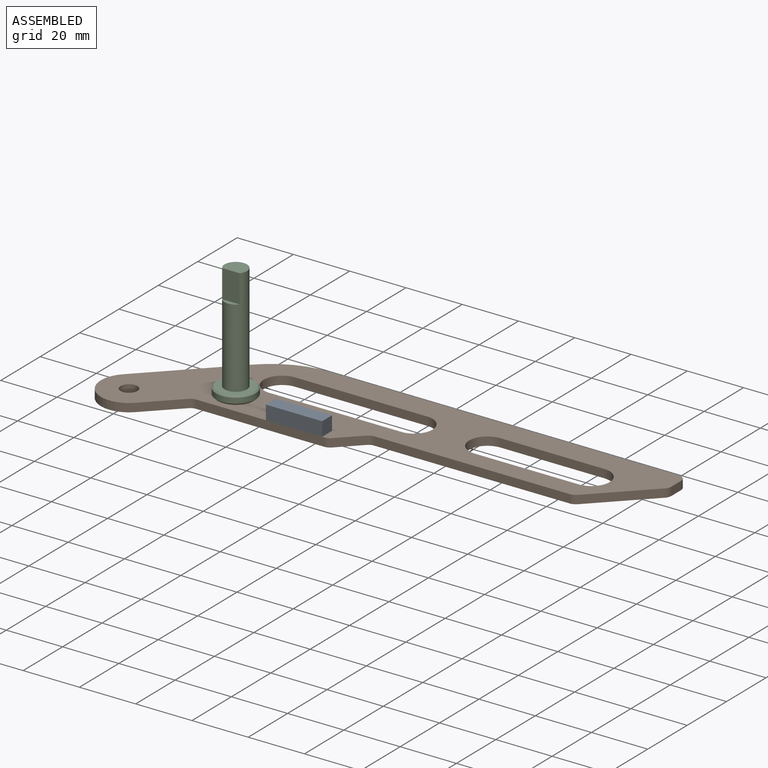
[diagram: assembled view]
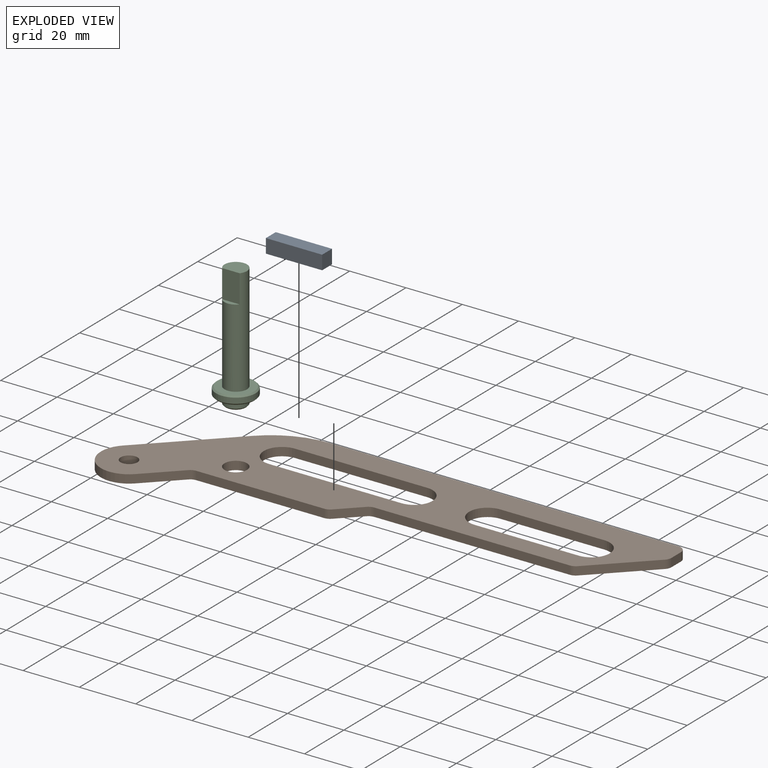
[diagram: exploded view]
GUIDED TOUR — MATED ASSEMBLY (Onshape document 8dc88a32c222754350731d31, AutoMate assembly 8dc88a32c222754350731d31_5c7265ce2e5a198c69324356_d00012385e705c01880abd5c_default)

This assembly has 3 components, labeled P0..P2 below (a component is one placed occurrence of a part; the same part can appear more than once), held together by 2 mates. A mate is a constraint between two components; its type names the relative motion it leaves free:
  FASTENED — locks the two components together rigidly (no relative motion),
  PARALLEL — keeps the two listed directions parallel.
Axis/direction vectors are unit vectors and 'through' points are millimeter coordinates, both in the assembly's world frame.

MATES
  1. FASTENED "Fastened 1": P0 <-> P1, direction (0.000, 0.000, 1.000) through (-65.67, 31.32, 6.66) mm
  2. PARALLEL "Parallel 1": P2 <-> P1, direction (0.000, 0.000, -1.000) through (-102.67, 40.32, -1.34) mm

ASSEMBLY ORDER
  1. P2 — the base component [order verified]
  2. P1 [order verified]
  3. P0 [order verified]
(P1 verified with a relaxed clearance tolerance: the source model stores slight part interference there.)
Order-tag legend:
  [order verified] — this step's position reverses a verified removal order: the component was checked to insert without passing through the ones already placed.

Of the 3 components, 3 carry the full construction recipe — the FeatureScript program that regenerates the part's solid from scratch; the rest are supplied as boundary geometry only.
Each toured component is shown spotlighted twice — in the assembled view, then in the exploded view, where a leader line traces a displaced component back to its assembled socket (saturated green if recipe-attached, orange if geometry-only; every other component desaturated gray) — followed by its recipe or geometry summary and the mates that hold it.
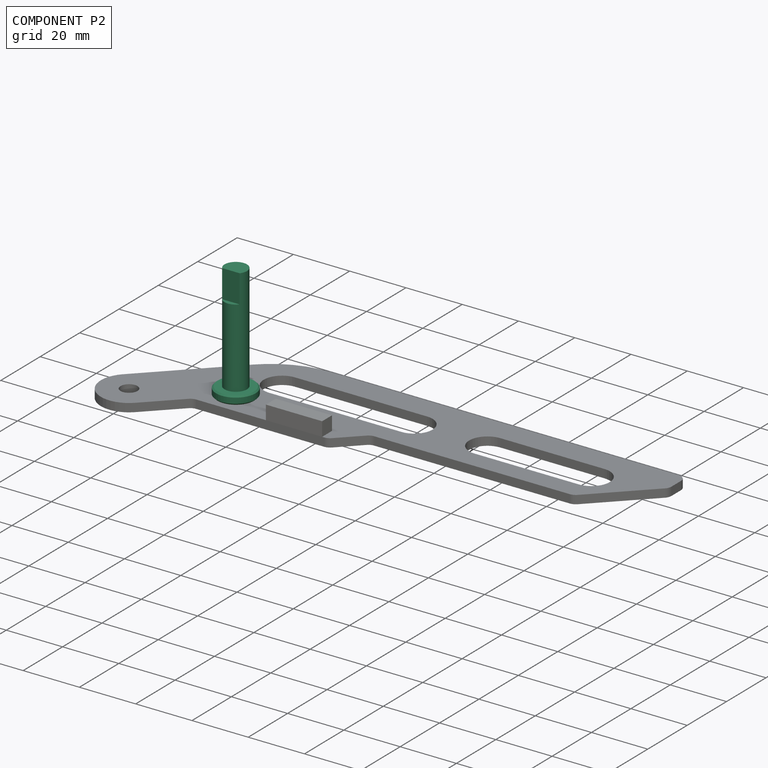
[diagram: component P2 — assembled]
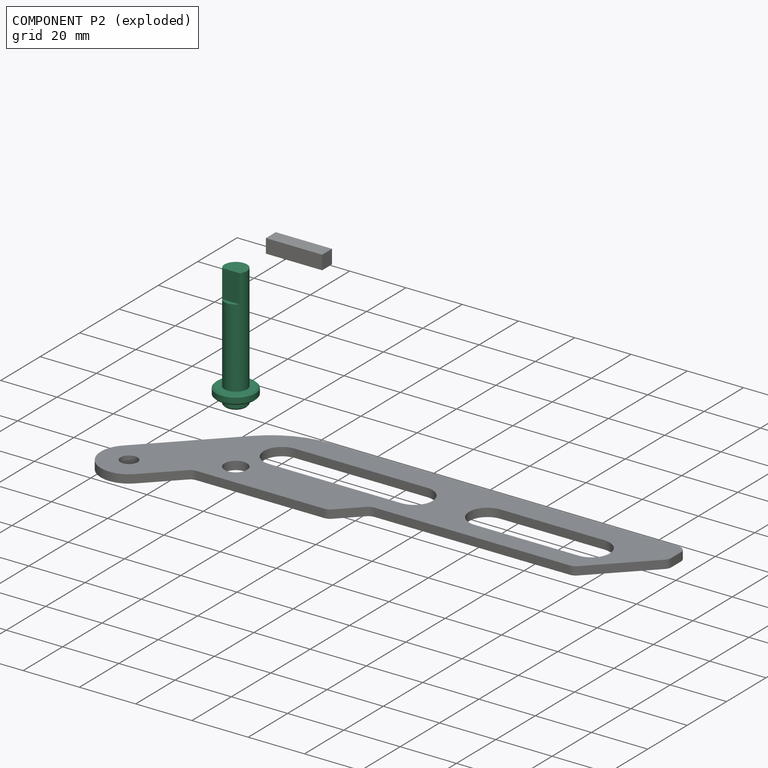
[diagram: component P2 — exploded]
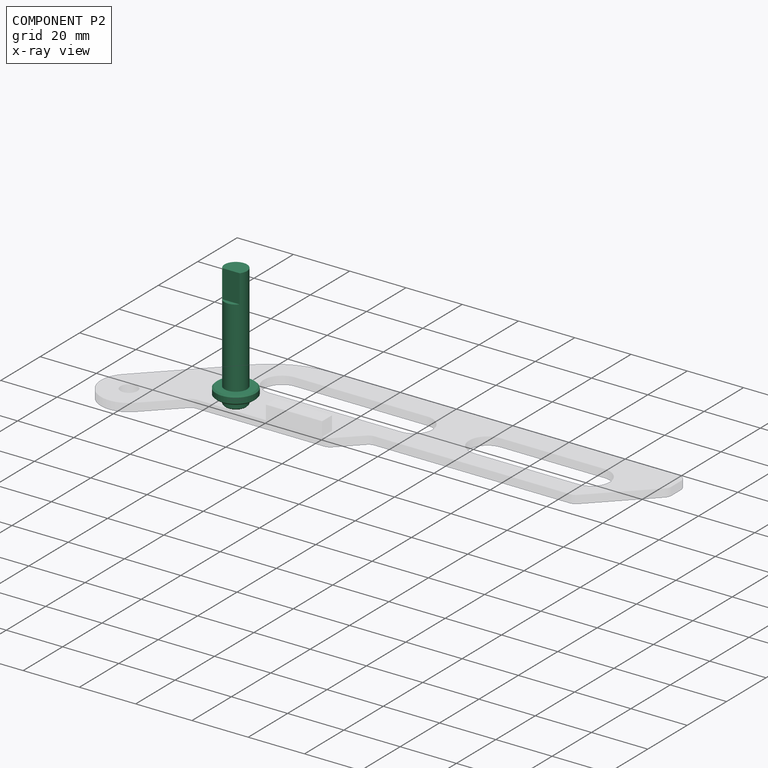
[diagram: component P2 — x-ray view]
COMPONENT P2 — recipe-attached (CADFS 00244749, mesh-verified: the recipe's output STEP matches this component's geometry to below the mesh-comparison resolution (tessellation chordal tolerance ~0.0724 mm)).
Held by: PARALLEL mate "Parallel 1" to P1.
Construction recipe (FeatureScript — the CAD program that rebuilds this solid; sketch coordinates are in the units given by the * unit suffixes, e.g. mm):

FeatureScript 1511;
import(path : "onshape/std/geometry.fs", version : "1511.0");
import(path : "onshape/std/common.fs", version : "1511.0");
const mm = millimeter;
const VERTEX = EntityType.VERTEX;
const EDGE = EntityType.EDGE;
const FACE = EntityType.FACE;
const BODY = EntityType.BODY;
function v(x, y){return vector(x, y);}
function OD(order){return orderDisambiguation(order);}
function OSD(set){return originalSetDisambiguation(set);}
function TD(topology){return topologyDisambiguation(topology);}
function TDD(query){return trueDependencyDisambiguation(query);}
function sQuery(a, b, c) {return sketchEntityQuery(a, b, c);}

annotation { "Feature Type Name" : "Feature", "Feature Type Description" : "" }
export const myFeature = defineFeature(function(context is Context, id is Id, definition is map)
    precondition{}
    {
        {
            var Q0;
            Q0=qCreatedBy(makeId("Top.planeOp"),FACE);
            var sketch = newSketch(context, id + "F0", { "sketchPlane" : qUnion([Q0])});
            skCircle(sketch, "E0", {"center": v(0, 0) * mm, "radius": 4 * mm});
            skCircle(sketch, "E1", {"center": v(0, 0) * mm, "radius": 7 * mm});
            skSolve(sketch);
        }
        {
            var Q0;
            Q0=makeQuery(id+"F0.imprint","IMPRINT",FACE,{"disambiguationData":[TD([[makeQuery(id+"F0.imprint","IMPRINT",EDGE,{"derivedFrom":sQuery(id+"F0.wireOp",EDGE,"E0")}),1.0]])]});
            extrude(context, id + "F1", {"entities" : qUnion([Q0]), "depth" : 41 * mm});
        }
        {
            var Q0;
            Q0=makeQuery(id+"F0.imprint","IMPRINT",FACE,{"disambiguationData":[TD([[makeQuery(id+"F0.imprint","IMPRINT",EDGE,{"derivedFrom":sQuery(id+"F0.wireOp",EDGE,"E0")}),1.0]])]});
            var Q1;
            Q1=sQuery(id+"F0.wireOp",EDGE,"E0");
            extrude(context, id + "F2", {"entities" : qUnion([Q0]), "operationType" : NewBodyOperationType.ADD, "surfaceEntities" : qUnion([Q1]), "oppositeDirection" : true, "depth" : 3 * mm});
        }
        {
            var Q0;
            Q0=makeQuery(id+"F0.imprint","IMPRINT",FACE,{"disambiguationData":[TD([[makeQuery(id+"F0.imprint","IMPRINT",EDGE,{"derivedFrom":sQuery(id+"F0.wireOp",EDGE,"E0")}),-1.0]])]});
            extrude(context, id + "F3", {"entities" : qUnion([Q0]), "operationType" : NewBodyOperationType.ADD, "depth" : 3 * mm});
        }
        {
            var Q0;
            Q0=makeQuery(id+"F1.opExtrude","CAP_FACE",FACE,{"disambiguationData":[OSD([sQuery(id+"F0.wireOp",EDGE,"E0")])],"isStart":false});
            var sketch = newSketch(context, id + "F4", { "sketchPlane" : qUnion([Q0])});
            skLineSegment(sketch, "E2", {"start": v(0, 0) * mm, "end": v(0, -2.5) * mm});
            skLineSegment(sketch, "E3.bottom", {"start": v(4.57, -2.5) * mm, "end": v(-4.51, -2.5) * mm});
            skLineSegment(sketch, "E3.top", {"start": v(4.57, -5.26) * mm, "end": v(-4.51, -5.26) * mm});
            skLineSegment(sketch, "E3.left", {"start": v(4.57, -2.5) * mm, "end": v(4.57, -5.26) * mm});
            skLineSegment(sketch, "E3.right", {"start": v(-4.51, -2.5) * mm, "end": v(-4.51, -5.26) * mm});
            skSolve(sketch);
        }
        {
            var Q0;
            Q0 = qSketchRegion(id + "F4", true);
            extrude(context, id + "F5", {"entities" : qUnion([Q0]), "operationType" : NewBodyOperationType.REMOVE, "oppositeDirection" : true, "depth" : 10 * mm});
        }
        {
            var Q0;
            Q0=makeQuery(id+"F3.opExtrude","CAP_EDGE",EDGE,{"disambiguationData":[OSD([sQuery(id+"F0.wireOp",EDGE,"E1")])],"isStart":false});
            chamfer(context, id + "F6", {"entities" : qUnion([Q0]), "chamferType" : ChamferType.OFFSET_ANGLE, "width" : .5 * mm, "oppositeDirection" : false, "angle" : 45 * degree, "tangentPropagation" : true});
        }
        {
            var Q0;
            Q0=makeQuery(id+"F3.opExtrude","CAP_EDGE",EDGE,{"disambiguationData":[OSD([sQuery(id+"F0.wireOp",EDGE,"E1")])],"isStart":true});
            chamfer(context, id + "F7", {"entities" : qUnion([Q0]), "chamferType" : ChamferType.OFFSET_ANGLE, "width" : .5 * mm, "oppositeDirection" : false, "angle" : 45 * degree, "tangentPropagation" : true});
        }
        {
            var Q0;
            Q0=makeQuery(id+"F2.opExtrude","CAP_EDGE",EDGE,{"disambiguationData":[OSD([sQuery(id+"F0.wireOp",EDGE,"E0")])],"isStart":false});
            chamfer(context, id + "F8", {"entities" : qUnion([Q0]), "chamferType" : ChamferType.OFFSET_ANGLE, "width" : .5 * mm, "oppositeDirection" : false, "angle" : 45 * degree, "tangentPropagation" : true});
        }
    });
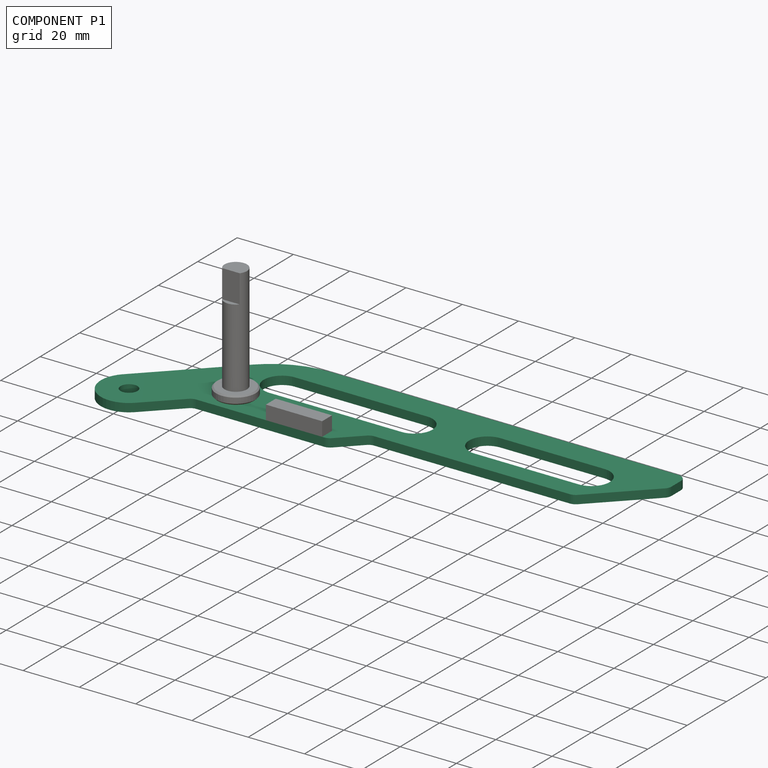
[diagram: component P1 — assembled]
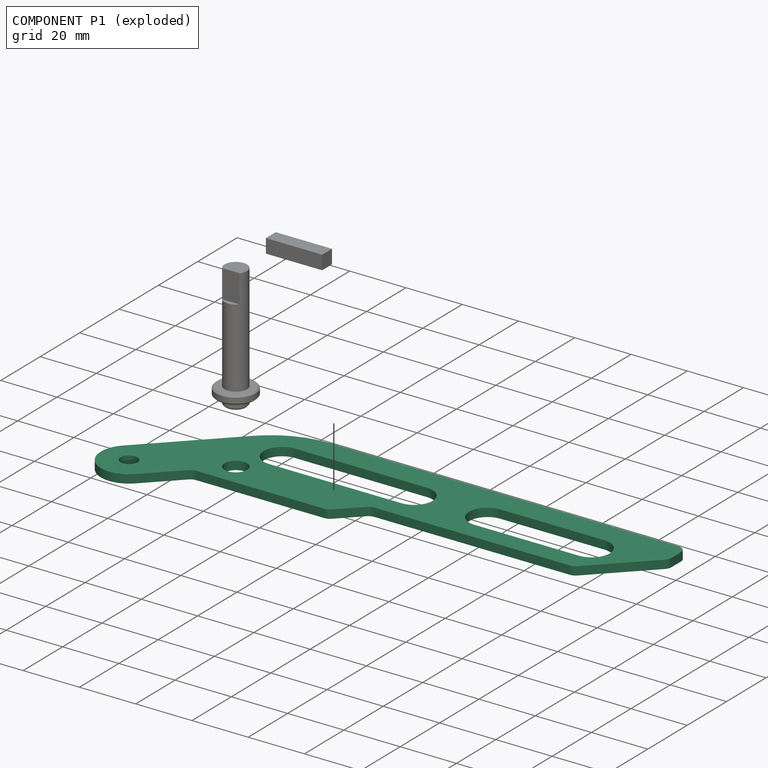
[diagram: component P1 — exploded]
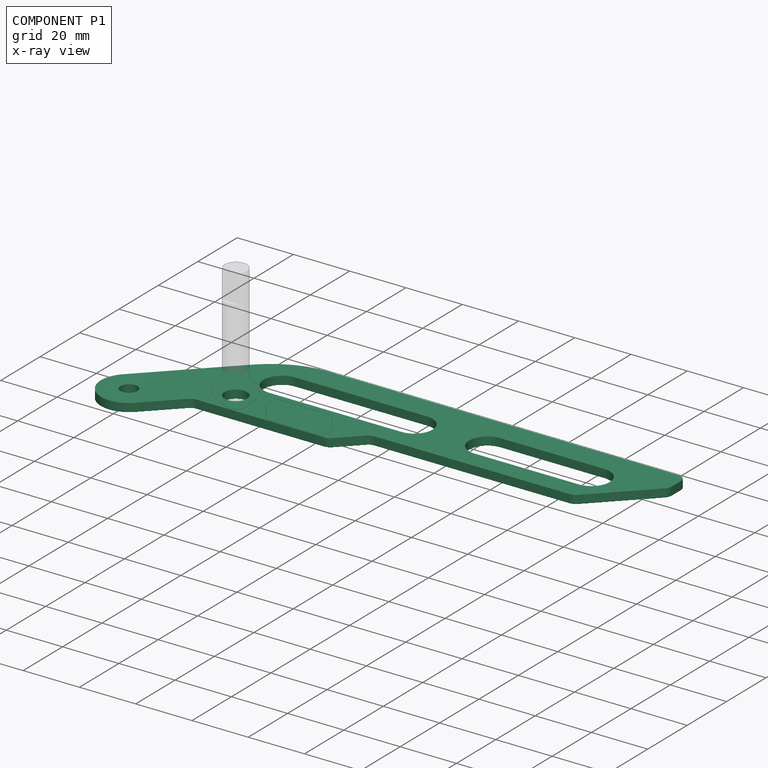
[diagram: component P1 — x-ray view]
COMPONENT P1 — recipe-attached (CADFS 00244751, mesh-verified: the recipe's output STEP matches this component's geometry to below the mesh-comparison resolution (tessellation chordal tolerance ~0.279 mm)).
Held by: FASTENED mate "Fastened 1" to P0; PARALLEL mate "Parallel 1" to P2.
Construction recipe (FeatureScript — the CAD program that rebuilds this solid; sketch coordinates are in the units given by the * unit suffixes, e.g. mm):

FeatureScript 1511;
import(path : "onshape/std/geometry.fs", version : "1511.0");
import(path : "onshape/std/common.fs", version : "1511.0");
const mm = millimeter;
const VERTEX = EntityType.VERTEX;
const EDGE = EntityType.EDGE;
const FACE = EntityType.FACE;
const BODY = EntityType.BODY;
function v(x, y){return vector(x, y);}
function OD(order){return orderDisambiguation(order);}
function OSD(set){return originalSetDisambiguation(set);}
function TD(topology){return topologyDisambiguation(topology);}
function TDD(query){return trueDependencyDisambiguation(query);}
function sQuery(a, b, c) {return sketchEntityQuery(a, b, c);}

annotation { "Feature Type Name" : "Feature", "Feature Type Description" : "" }
export const myFeature = defineFeature(function(context is Context, id is Id, definition is map)
    precondition{}
    {
        {
            var Q0;
            Q0=qCreatedBy(makeId("Top.planeOp"),FACE);
            var sketch = newSketch(context, id + "F0", { "sketchPlane" : qUnion([Q0])});
            skLineSegment(sketch, "E0", {"start": v(-352.57, 8.85) * mm, "end": v(-325.42, 35.99) * mm});
            skLineSegment(sketch, "E1", {"start": v(-304.21, 44.78) * mm, "end": v(-180.35, 44.78) * mm});
            skLineSegment(sketch, "E2", {"start": v(-177.35, 41.78) * mm, "end": v(-177.35, 37.02) * mm});
            skLineSegment(sketch, "E3", {"start": v(-178.23, 34.9) * mm, "end": v(-196.47, 16.65) * mm});
            skLineSegment(sketch, "E4", {"start": v(-198.6, 15.78) * mm, "end": v(-268.1, 15.78) * mm});
            skLineSegment(sketch, "E5", {"start": v(-270.23, 14.9) * mm, "end": v(-277.47, 7.65) * mm});
            skLineSegment(sketch, "E6", {"start": v(-279.6, 6.78) * mm, "end": v(-325.1, 6.78) * mm});
            skLineSegment(sketch, "E7", {"start": v(-327.23, 5.9) * mm, "end": v(-338.42, -5.3) * mm});
            skLineSegment(sketch, "E8", {"start": v(-310.35, 35.78) * mm, "end": v(-263.35, 35.78) * mm});
            skLineSegment(sketch, "E9", {"start": v(-263.35, 22.78) * mm, "end": v(-310.35, 22.78) * mm});
            skLineSegment(sketch, "E10", {"start": v(-237.35, 35.78) * mm, "end": v(-200.35, 35.78) * mm});
            skLineSegment(sketch, "E11", {"start": v(-237.35, 22.78) * mm, "end": v(-200.35, 22.78) * mm});
            skArc(sketch, "E12", {"start": v(-352.57, 8.85) * mm, "mid": v(-352.57, -5.3) * mm, "end": v(-338.42, -5.3) * mm});
            skArc(sketch, "E13", {"start": v(-310.35, 35.78) * mm, "mid": v(-316.85, 29.28) * mm, "end": v(-310.35, 22.78) * mm});
            skArc(sketch, "E14", {"start": v(-263.35, 22.78) * mm, "mid": v(-256.85, 29.28) * mm, "end": v(-263.35, 35.78) * mm});
            skArc(sketch, "E15", {"start": v(-237.35, 35.78) * mm, "mid": v(-243.85, 29.28) * mm, "end": v(-237.35, 22.78) * mm});
            skArc(sketch, "E16", {"start": v(-200.35, 22.78) * mm, "mid": v(-193.85, 29.28) * mm, "end": v(-200.35, 35.78) * mm});
            skCircle(sketch, "E17", {"center": v(-345.5, 1.78) * mm, "radius": 3 * mm});
            skCircle(sketch, "E18", {"center": v(-317.35, 15.78) * mm, "radius": 4 * mm});
            skArc(sketch, "E19", {"start": v(-304.21, 44.78) * mm, "mid": v(-315.7, 42.5) * mm, "end": v(-325.42, 35.99) * mm});
            skArc(sketch, "E20", {"start": v(-325.1, 6.78) * mm, "mid": v(-326.26, 6.55) * mm, "end": v(-327.23, 5.9) * mm});
            skArc(sketch, "E21", {"start": v(-279.6, 6.78) * mm, "mid": v(-278.45, 7) * mm, "end": v(-277.47, 7.65) * mm});
            skArc(sketch, "E22", {"start": v(-268.1, 15.78) * mm, "mid": v(-269.26, 15.55) * mm, "end": v(-270.23, 14.9) * mm});
            skArc(sketch, "E23", {"start": v(-198.6, 15.78) * mm, "mid": v(-197.45, 16) * mm, "end": v(-196.47, 16.65) * mm});
            skArc(sketch, "E24", {"start": v(-178.23, 34.9) * mm, "mid": v(-177.58, 35.87) * mm, "end": v(-177.35, 37.02) * mm});
            skArc(sketch, "E25", {"start": v(-177.35, 41.78) * mm, "mid": v(-178.23, 43.9) * mm, "end": v(-180.35, 44.78) * mm});
            skSolve(sketch);
        }
        {
            var Q0;
            Q0=makeQuery(id+"F0.imprint","IMPRINT",FACE,{"disambiguationData":[TD([[makeQuery(id+"F0.imprint","IMPRINT",EDGE,{"derivedFrom":sQuery(id+"F0.wireOp",EDGE,"E0")}),-1.0]])]});
            extrude(context, id + "F1", {"entities" : qUnion([Q0]), "depth" : 3 * mm});
        }
    });
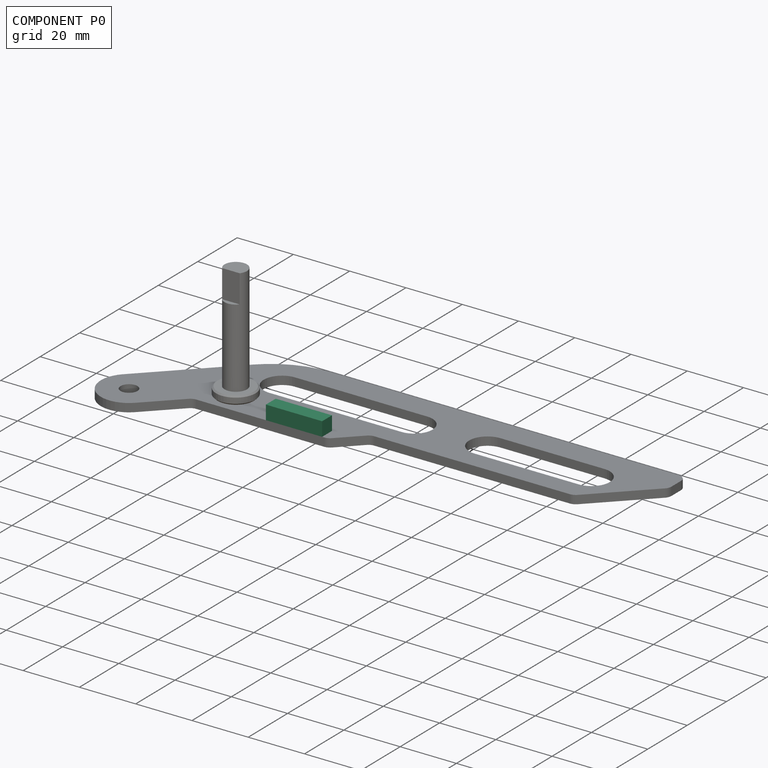
[diagram: component P0 — assembled]
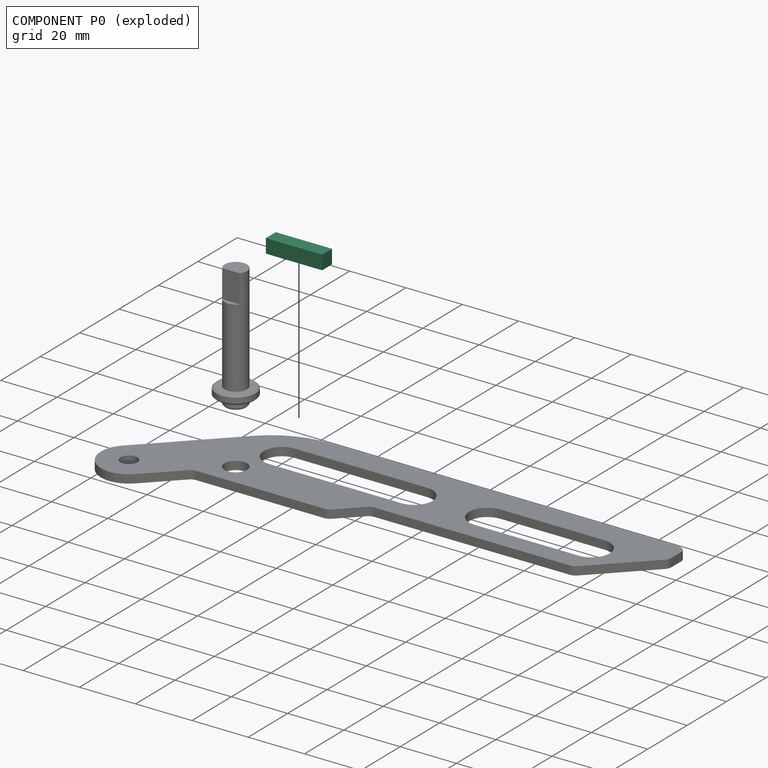
[diagram: component P0 — exploded]
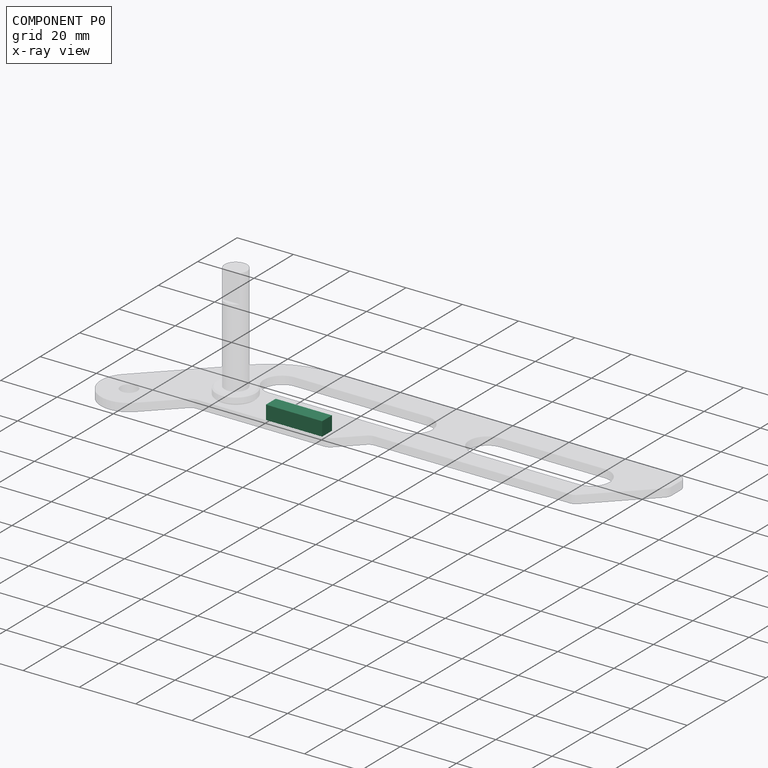
[diagram: component P0 — x-ray view]
COMPONENT P0 — recipe-attached (CADFS 00244750, mesh-verified: the recipe's output STEP matches this component's geometry to below the mesh-comparison resolution (tessellation chordal tolerance ~0.0318 mm)).
Held by: FASTENED mate "Fastened 1" to P1.
Construction recipe (FeatureScript — the CAD program that rebuilds this solid; sketch coordinates are in the units given by the * unit suffixes, e.g. mm):

FeatureScript 1511;
import(path : "onshape/std/geometry.fs", version : "1511.0");
import(path : "onshape/std/common.fs", version : "1511.0");
const mm = millimeter;
const VERTEX = EntityType.VERTEX;
const EDGE = EntityType.EDGE;
const FACE = EntityType.FACE;
const BODY = EntityType.BODY;
function v(x, y){return vector(x, y);}
function OD(order){return orderDisambiguation(order);}
function OSD(set){return originalSetDisambiguation(set);}
function TD(topology){return topologyDisambiguation(topology);}
function TDD(query){return trueDependencyDisambiguation(query);}
function sQuery(a, b, c) {return sketchEntityQuery(a, b, c);}

annotation { "Feature Type Name" : "Feature", "Feature Type Description" : "" }
export const myFeature = defineFeature(function(context is Context, id is Id, definition is map)
    precondition{}
    {
        {
            var Q0;
            Q0=qCreatedBy(makeId("Top.planeOp"),FACE);
            var sketch = newSketch(context, id + "F0", { "sketchPlane" : qUnion([Q0])});
            skLineSegment(sketch, "E0.bottom", {"start": v(10, 2.5) * mm, "end": v(-10, 2.5) * mm});
            skLineSegment(sketch, "E0.top", {"start": v(10, -2.5) * mm, "end": v(-10, -2.5) * mm});
            skLineSegment(sketch, "E0.left", {"start": v(10, 2.5) * mm, "end": v(10, -2.5) * mm});
            skLineSegment(sketch, "E0.right", {"start": v(-10, 2.5) * mm, "end": v(-10, -2.5) * mm});
            skPoint(sketch, "E0.middle", {"position": v(0, 0) * mm});
            skSolve(sketch);
        }
        {
            var Q0;
            Q0 = qSketchRegion(id + "F0", true);
            extrude(context, id + "F1", {"entities" : qUnion([Q0]), "depth" : 5 * mm});
        }
    });
PROVENANCE & LICENSES
Assembly (occurrences, transforms, mates, per-part STEP geometry): AutoMate dataset, Zenodo record 7776208, CC0.
Construction recipes: CADFS (HuggingFace VladPyatov/CADFS, CC-BY-4.0, layered over the ABC dataset), FeatureScript reconstruction programs keyed by ABC model id.
Join: ABC meta listings map ABC model id -> Onshape documentId; within a shared document, parts are matched by geometric signature (bounding-box dims + volume at 0.1% relative tolerance, exact B-rep face/solid counts).
Verification: 3 of this assembly's 3 components carry a recipe attachment, and every attachment is mesh-verified: the CADFS STEP and the AutoMate member STEP were compared as meshes in their shared local frame (symmetric sampled-point-to-mesh distance); worst across the 3 attachments: below the mesh-comparison resolution (tessellation chordal tolerance ~0.279 mm) on a 186 mm part.
Renders: orthographic iso camera (az 35 / el 25); the floor grid conveys scale (grid pitch printed in each image; no ruler). In the exploded view each component is displaced by its stored offset vector: the offsets alone carry the explosion direction (mate normal/axis signs are not orientation cues and do not encode it), and separation distances are assigned per mate-chain, not proportionally to assembly-order depth.
